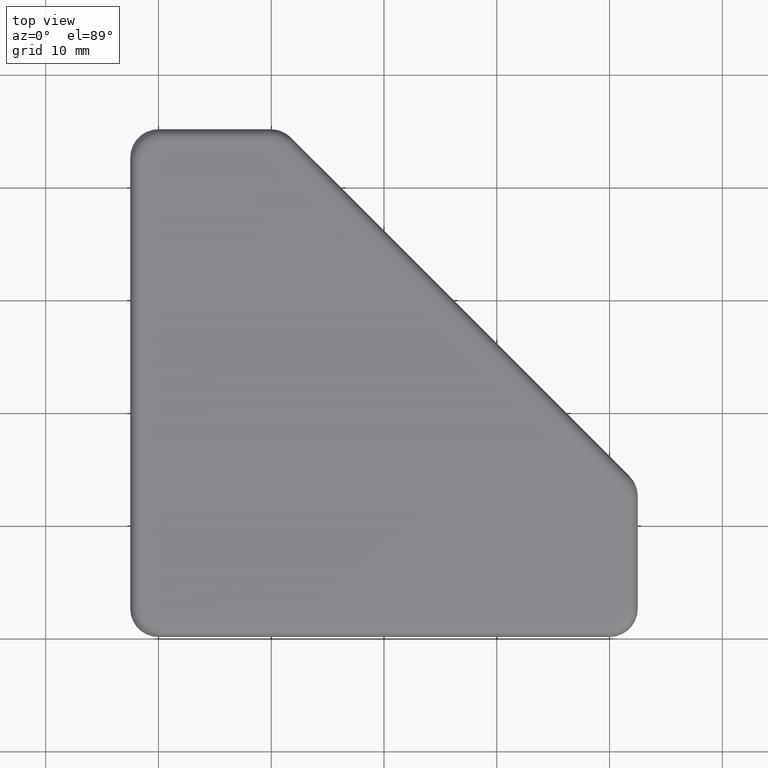
[diagram: clean part render]
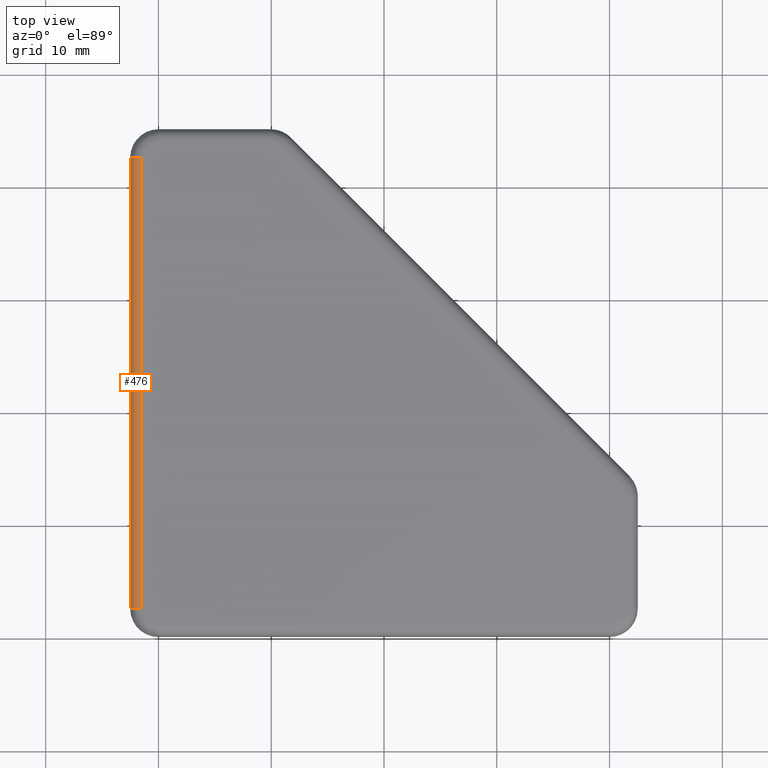
[diagram: same view with one face highlighted and labeled with its STEP entity id]
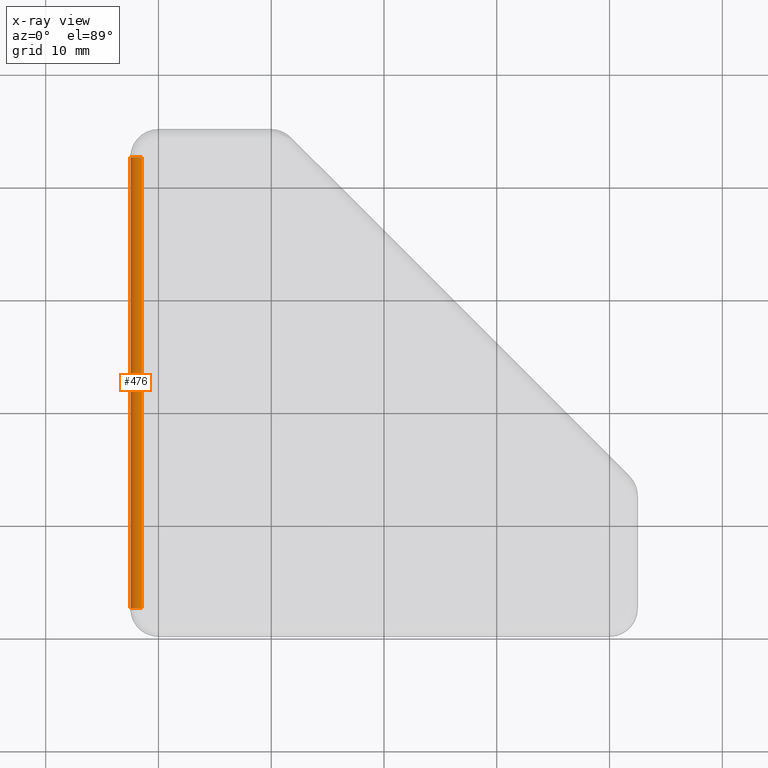
[diagram: x-ray of the same camera — body ghosted, the highlighted face saturated]
A machine part, top view. The second image highlights one B-rep face of the part: STEP entity #476.
The next image is the same camera in x-ray: the body ghosted, the highlighted face saturated — about 0% of this face is hidden behind the body in this view.
In plain terms, the highlighted cylindrical surface (edge-blend (fillet) strip) has radius 1 mm, axis along (0, 1, 0).
Its self-contained STEP definition (entity closure, byte-faithful):
#27=CYLINDRICAL_SURFACE('',#536,1.);
#68=FACE_OUTER_BOUND('',#105,.T.);
#105=EDGE_LOOP('',(#405,#406,#407,#408));
#154=CIRCLE('',#535,1.);
#155=CIRCLE('',#537,1.);
#172=LINE('',#767,#197);
#183=LINE('',#796,#208);
#197=VECTOR('',#605,39.99995559359);
#208=VECTOR('',#634,39.99995559359);
#236=VERTEX_POINT('',#764);
#237=VERTEX_POINT('',#766);
#245=VERTEX_POINT('',#790);
#246=VERTEX_POINT('',#794);
#278=EDGE_CURVE('',#236,#237,#172,.T.);
#293=EDGE_CURVE('',#245,#246,#183,.T.);
#308=EDGE_CURVE('',#246,#237,#154,.T.);
#309=EDGE_CURVE('',#245,#236,#155,.T.);
#405=ORIENTED_EDGE('',*,*,#308,.T.);
#406=ORIENTED_EDGE('',*,*,#278,.F.);
#407=ORIENTED_EDGE('',*,*,#309,.F.);
#408=ORIENTED_EDGE('',*,*,#293,.T.);
#476=ADVANCED_FACE('',(#68),#27,.T.);
#535=AXIS2_PLACEMENT_3D('',#969,#671,#672);
#536=AXIS2_PLACEMENT_3D('',#970,#673,#674);
#537=AXIS2_PLACEMENT_3D('',#971,#675,#676);
#605=DIRECTION('',(0.,-1.,0.));
#634=DIRECTION('',(0.,-1.,0.));
#671=DIRECTION('center_axis',(0.,1.,0.));
#672=DIRECTION('ref_axis',(-1.,0.,0.));
#673=DIRECTION('center_axis',(0.,1.,0.));
#674=DIRECTION('ref_axis',(-1.,0.,0.));
#675=DIRECTION('center_axis',(0.,1.,0.));
#676=DIRECTION('ref_axis',(-1.,0.,0.));
#764=CARTESIAN_POINT('',(-21.4999767967855,42.49995599983,2.49999999999));
#766=CARTESIAN_POINT('',(-21.4999767967855,2.50000040624005,2.49999999999));
#767=CARTESIAN_POINT('',(-21.4999767967855,42.49995599983,2.49999999999));
#790=CARTESIAN_POINT('',(-22.4999767967855,42.49995599983,1.49999999999));
#794=CARTESIAN_POINT('',(-22.4999767967855,2.50000040624005,1.49999999999));
#796=CARTESIAN_POINT('',(-22.4999767967855,42.49995599983,1.49999999999));
#969=CARTESIAN_POINT('Origin',(-21.4999767967855,2.50000040624005,1.49999999999));
#970=CARTESIAN_POINT('Origin',(-21.4999767967855,42.49995599983,1.49999999999));
#971=CARTESIAN_POINT('Origin',(-21.4999767967855,42.49995599983,1.49999999999));